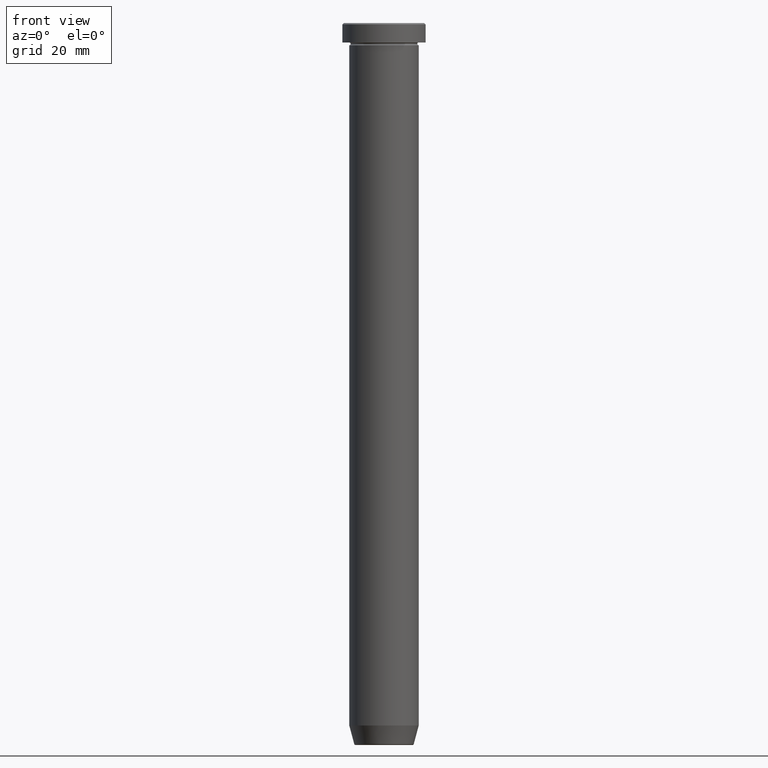
[diagram: clean part render]
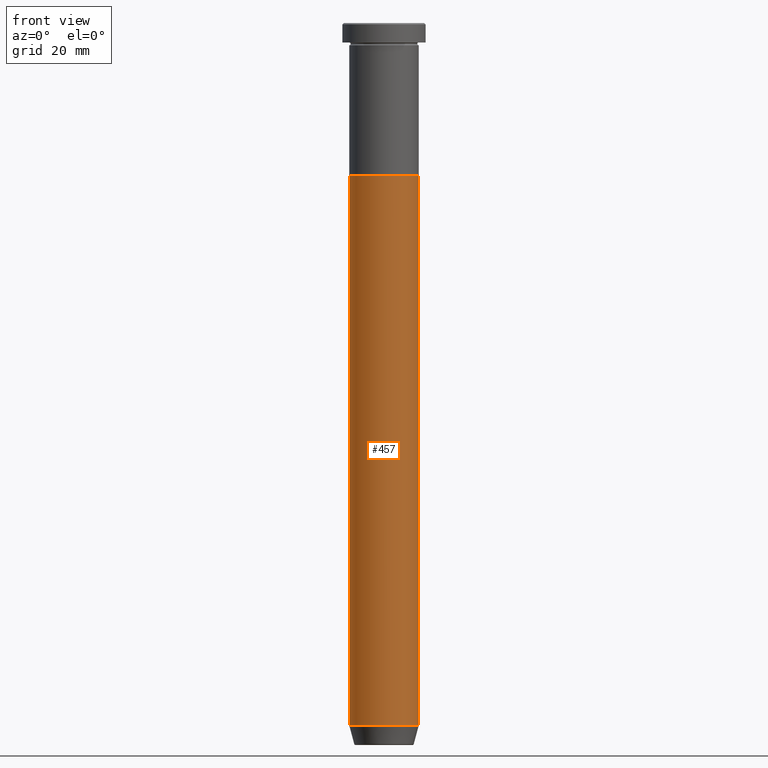
[diagram: same view with one face highlighted and labeled with its STEP entity id]
A machine part, front view. The second image highlights one B-rep face of the part: STEP entity #457.
In plain terms, the highlighted cylindrical surface (edge-blend (fillet) strip) has radius 12.5 mm, axis along (-0, -0, 1).
Its self-contained STEP definition (entity closure, byte-faithful):
#7 = LINE ( 'NONE', #194, #243 ) ;
#21 = DIRECTION ( 'NONE',  ( -0.000000000000000000, -0.000000000000000000, 1.000000000000000000 ) ) ;
#62 = ORIENTED_EDGE ( 'NONE', *, *, #360, .T. ) ;
#64 = AXIS2_PLACEMENT_3D ( 'NONE', #392, #303, #450 ) ;
#76 = CARTESIAN_POINT ( 'NONE',  ( 12.50000000000000000, 0.000000000000000000, -54.99999999999999289 ) ) ;
#96 = CARTESIAN_POINT ( 'NONE',  ( -12.50000000000000000, 1.530808498934191521E-15, -54.99999999999999289 ) ) ;
#129 = CARTESIAN_POINT ( 'NONE',  ( 12.50000000000000000, 0.000000000000000000, 0.000000000000000000 ) ) ;
#132 = VERTEX_POINT ( 'NONE', #76 ) ;
#171 = EDGE_CURVE ( 'NONE', #538, #132, #459, .T. ) ;
#194 = CARTESIAN_POINT ( 'NONE',  ( -12.50000000000000000, 1.530808498934191521E-15, 0.000000000000000000 ) ) ;
#205 = CYLINDRICAL_SURFACE ( 'NONE', #64, 12.50000000000000000 ) ;
#243 = VECTOR ( 'NONE', #376, 1000.000000000000000 ) ;
#247 = ORIENTED_EDGE ( 'NONE', *, *, #268, .F. ) ;
#248 = DIRECTION ( 'NONE',  ( 1.000000000000000000, 0.000000000000000000, 0.000000000000000000 ) ) ;
#268 = EDGE_CURVE ( 'NONE', #519, #538, #7, .T. ) ;
#292 = FACE_OUTER_BOUND ( 'NONE', #549, .T. ) ;
#303 = DIRECTION ( 'NONE',  ( -0.000000000000000000, -0.000000000000000000, 1.000000000000000000 ) ) ;
#309 = ORIENTED_EDGE ( 'NONE', *, *, #171, .F. ) ;
#312 = DIRECTION ( 'NONE',  ( -0.000000000000000000, -0.000000000000000000, 1.000000000000000000 ) ) ;
#318 = ORIENTED_EDGE ( 'NONE', *, *, #401, .T. ) ;
#324 = LINE ( 'NONE', #129, #381 ) ;
#354 = CARTESIAN_POINT ( 'NONE',  ( 0.000000000000000000, 0.000000000000000000, -253.0000000000000000 ) ) ;
#360 = EDGE_CURVE ( 'NONE', #391, #132, #324, .T. ) ;
#364 = AXIS2_PLACEMENT_3D ( 'NONE', #452, #545, #541 ) ;
#376 = DIRECTION ( 'NONE',  ( -0.000000000000000000, -0.000000000000000000, 1.000000000000000000 ) ) ;
#381 = VECTOR ( 'NONE', #312, 1000.000000000000000 ) ;
#391 = VERTEX_POINT ( 'NONE', #443 ) ;
#392 = CARTESIAN_POINT ( 'NONE',  ( 0.000000000000000000, 0.000000000000000000, 0.000000000000000000 ) ) ;
#401 = EDGE_CURVE ( 'NONE', #519, #391, #516, .T. ) ;
#443 = CARTESIAN_POINT ( 'NONE',  ( 12.50000000000000000, 0.000000000000000000, -253.0000000000000000 ) ) ;
#450 = DIRECTION ( 'NONE',  ( 1.000000000000000000, 0.000000000000000000, 0.000000000000000000 ) ) ;
#452 = CARTESIAN_POINT ( 'NONE',  ( 0.000000000000000000, 0.000000000000000000, -54.99999999999999289 ) ) ;
#457 = ADVANCED_FACE ( 'NONE', ( #292 ), #205, .T. ) ;
#459 = CIRCLE ( 'NONE', #364, 12.50000000000000000 ) ;
#469 = AXIS2_PLACEMENT_3D ( 'NONE', #354, #21, #248 ) ;
#516 = CIRCLE ( 'NONE', #469, 12.50000000000000000 ) ;
#519 = VERTEX_POINT ( 'NONE', #534 ) ;
#534 = CARTESIAN_POINT ( 'NONE',  ( -12.50000000000000000, 1.530808498934191521E-15, -253.0000000000000000 ) ) ;
#538 = VERTEX_POINT ( 'NONE', #96 ) ;
#541 = DIRECTION ( 'NONE',  ( 1.000000000000000000, 0.000000000000000000, 0.000000000000000000 ) ) ;
#545 = DIRECTION ( 'NONE',  ( -0.000000000000000000, -0.000000000000000000, 1.000000000000000000 ) ) ;
#549 = EDGE_LOOP ( 'NONE', ( #247, #318, #62, #309 ) ) ;